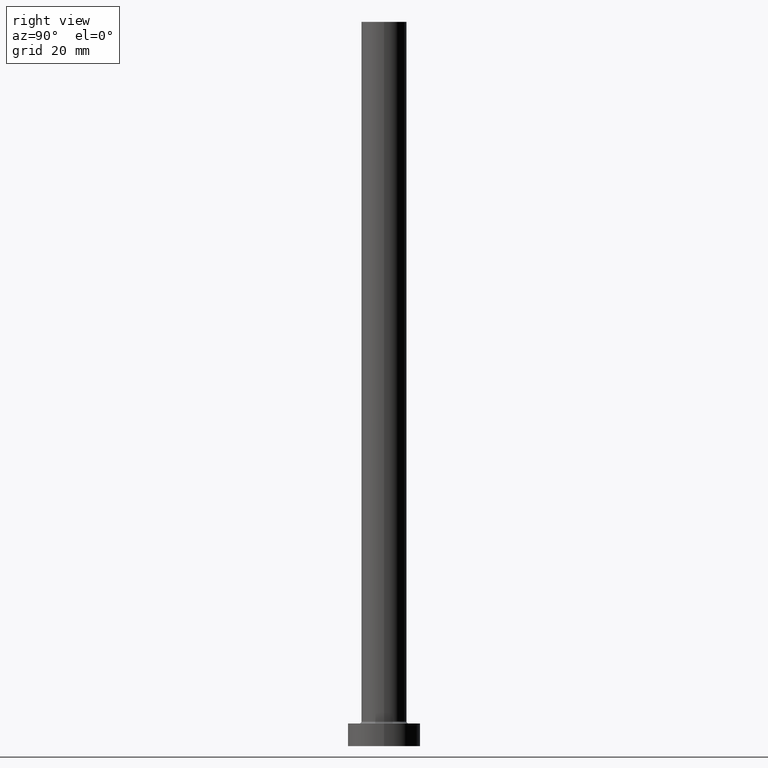
[diagram: clean part render]
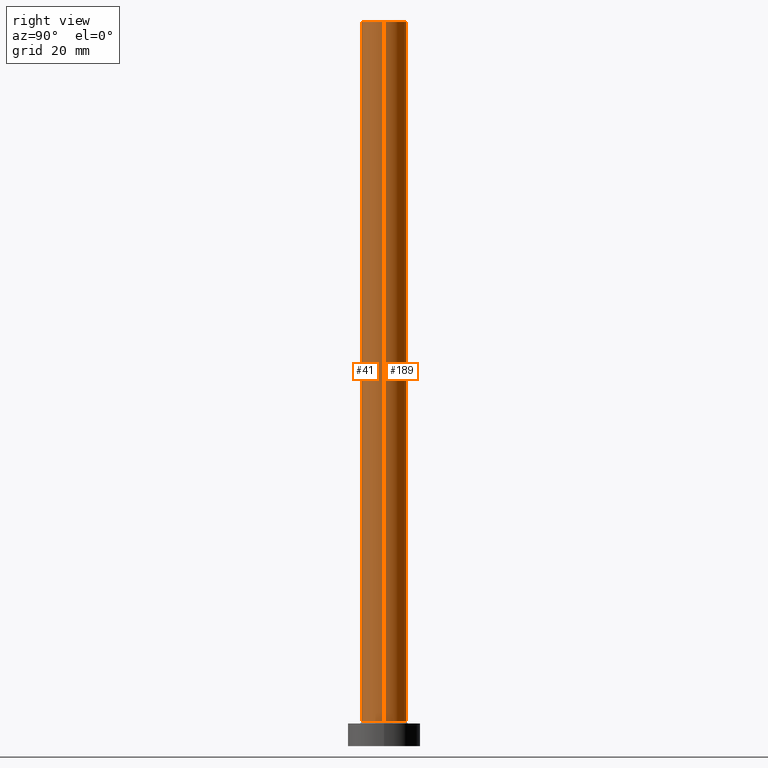
[diagram: same view with one multi-face feature highlighted, each face labeled with its STEP entity id]
A machine part, right view. The highlighted faces form ONE feature: a constant-radius fillet chain: 2 tangent blend faces with common blend radius 5 mm. The faces share edges in the B-rep.
Their STEP definitions:
[1] entity #41 (Cylinder):
#10 = DIRECTION ( 'NONE',  ( 1.000000000000000000, 0.000000000000000000, 0.000000000000000000 ) ) ;
#41 = ADVANCED_FACE ( 'NONE', ( #117 ), #362, .T. ) ;
#52 = CARTESIAN_POINT ( 'NONE',  ( 5.000000000000000000, 6.123233995736766282E-16, 160.0000000000000000 ) ) ;
#53 = EDGE_LOOP ( 'NONE', ( #223, #87, #453, #376 ) ) ;
#55 = DIRECTION ( 'NONE',  ( -1.000000000000000000, 0.000000000000000000, 0.000000000000000000 ) ) ;
#65 = VECTOR ( 'NONE', #221, 1000.000000000000000 ) ;
#78 = DIRECTION ( 'NONE',  ( 0.000000000000000000, 0.000000000000000000, 1.000000000000000000 ) ) ;
#81 = CARTESIAN_POINT ( 'NONE',  ( -5.000000000000000000, 0.000000000000000000, 160.0000000000000000 ) ) ;
#84 = DIRECTION ( 'NONE',  ( 0.000000000000000000, 0.000000000000000000, 1.000000000000000000 ) ) ;
#87 = ORIENTED_EDGE ( 'NONE', *, *, #277, .F. ) ;
#98 = CARTESIAN_POINT ( 'NONE',  ( 5.000000000000000000, 6.123233995736766282E-16, 5.500000000000005329 ) ) ;
#117 = FACE_OUTER_BOUND ( 'NONE', #53, .T. ) ;
#170 = VERTEX_POINT ( 'NONE', #98 ) ;
#175 = CARTESIAN_POINT ( 'NONE',  ( -5.000000000000000000, 0.000000000000000000, 5.500000000000005329 ) ) ;
#176 = VERTEX_POINT ( 'NONE', #269 ) ;
#205 = AXIS2_PLACEMENT_3D ( 'NONE', #416, #78, #211 ) ;
#211 = DIRECTION ( 'NONE',  ( 1.000000000000000000, 0.000000000000000000, 0.000000000000000000 ) ) ;
#216 = LINE ( 'NONE', #458, #393 ) ;
#221 = DIRECTION ( 'NONE',  ( -0.000000000000000000, -0.000000000000000000, -1.000000000000000000 ) ) ;
#223 = ORIENTED_EDGE ( 'NONE', *, *, #446, .F. ) ;
#269 = CARTESIAN_POINT ( 'NONE',  ( 5.000000000000000000, 6.123233995736766282E-16, 160.0000000000000000 ) ) ;
#275 = CARTESIAN_POINT ( 'NONE',  ( 0.000000000000000000, 0.000000000000000000, 5.500000000000005329 ) ) ;
#277 = EDGE_CURVE ( 'NONE', #288, #176, #349, .T. ) ;
#288 = VERTEX_POINT ( 'NONE', #81 ) ;
#289 = LINE ( 'NONE', #52, #65 ) ;
#313 = DIRECTION ( 'NONE',  ( -0.000000000000000000, -0.000000000000000000, -1.000000000000000000 ) ) ;
#331 = AXIS2_PLACEMENT_3D ( 'NONE', #367, #427, #55 ) ;
#349 = CIRCLE ( 'NONE', #205, 5.000000000000000000 ) ;
#362 = CYLINDRICAL_SURFACE ( 'NONE', #331, 5.000000000000000000 ) ;
#367 = CARTESIAN_POINT ( 'NONE',  ( 0.000000000000000000, 0.000000000000000000, 160.0000000000000000 ) ) ;
#369 = VERTEX_POINT ( 'NONE', #175 ) ;
#376 = ORIENTED_EDGE ( 'NONE', *, *, #423, .T. ) ;
#383 = EDGE_CURVE ( 'NONE', #288, #369, #216, .T. ) ;
#393 = VECTOR ( 'NONE', #313, 1000.000000000000000 ) ;
#415 = CIRCLE ( 'NONE', #461, 5.000000000000000000 ) ;
#416 = CARTESIAN_POINT ( 'NONE',  ( 0.000000000000000000, 0.000000000000000000, 160.0000000000000000 ) ) ;
#423 = EDGE_CURVE ( 'NONE', #369, #170, #415, .T. ) ;
#427 = DIRECTION ( 'NONE',  ( -0.000000000000000000, -0.000000000000000000, -1.000000000000000000 ) ) ;
#446 = EDGE_CURVE ( 'NONE', #176, #170, #289, .T. ) ;
#453 = ORIENTED_EDGE ( 'NONE', *, *, #383, .T. ) ;
#458 = CARTESIAN_POINT ( 'NONE',  ( -5.000000000000000000, 0.000000000000000000, 160.0000000000000000 ) ) ;
#461 = AXIS2_PLACEMENT_3D ( 'NONE', #275, #84, #10 ) ;
[2] entity #189 (Cylinder):
#9 = EDGE_CURVE ( 'NONE', #176, #288, #329, .T. ) ;
#21 = FACE_OUTER_BOUND ( 'NONE', #318, .T. ) ;
#23 = DIRECTION ( 'NONE',  ( 1.000000000000000000, 0.000000000000000000, 0.000000000000000000 ) ) ;
#24 = AXIS2_PLACEMENT_3D ( 'NONE', #68, #437, #23 ) ;
#52 = CARTESIAN_POINT ( 'NONE',  ( 5.000000000000000000, 6.123233995736766282E-16, 160.0000000000000000 ) ) ;
#65 = VECTOR ( 'NONE', #221, 1000.000000000000000 ) ;
#68 = CARTESIAN_POINT ( 'NONE',  ( 0.000000000000000000, 0.000000000000000000, 5.500000000000005329 ) ) ;
#81 = CARTESIAN_POINT ( 'NONE',  ( -5.000000000000000000, 0.000000000000000000, 160.0000000000000000 ) ) ;
#98 = CARTESIAN_POINT ( 'NONE',  ( 5.000000000000000000, 6.123233995736766282E-16, 5.500000000000005329 ) ) ;
#138 = CARTESIAN_POINT ( 'NONE',  ( 0.000000000000000000, 0.000000000000000000, 160.0000000000000000 ) ) ;
#151 = AXIS2_PLACEMENT_3D ( 'NONE', #138, #378, #174 ) ;
#154 = ORIENTED_EDGE ( 'NONE', *, *, #183, .T. ) ;
#166 = DIRECTION ( 'NONE',  ( -0.000000000000000000, -0.000000000000000000, -1.000000000000000000 ) ) ;
#170 = VERTEX_POINT ( 'NONE', #98 ) ;
#174 = DIRECTION ( 'NONE',  ( 1.000000000000000000, 0.000000000000000000, 0.000000000000000000 ) ) ;
#175 = CARTESIAN_POINT ( 'NONE',  ( -5.000000000000000000, 0.000000000000000000, 5.500000000000005329 ) ) ;
#176 = VERTEX_POINT ( 'NONE', #269 ) ;
#183 = EDGE_CURVE ( 'NONE', #170, #369, #220, .T. ) ;
#189 = ADVANCED_FACE ( 'NONE', ( #21 ), #266, .T. ) ;
#196 = ORIENTED_EDGE ( 'NONE', *, *, #9, .F. ) ;
#216 = LINE ( 'NONE', #458, #393 ) ;
#220 = CIRCLE ( 'NONE', #24, 5.000000000000000000 ) ;
#221 = DIRECTION ( 'NONE',  ( -0.000000000000000000, -0.000000000000000000, -1.000000000000000000 ) ) ;
#230 = DIRECTION ( 'NONE',  ( -1.000000000000000000, 0.000000000000000000, 0.000000000000000000 ) ) ;
#255 = AXIS2_PLACEMENT_3D ( 'NONE', #298, #166, #230 ) ;
#266 = CYLINDRICAL_SURFACE ( 'NONE', #255, 5.000000000000000000 ) ;
#269 = CARTESIAN_POINT ( 'NONE',  ( 5.000000000000000000, 6.123233995736766282E-16, 160.0000000000000000 ) ) ;
#288 = VERTEX_POINT ( 'NONE', #81 ) ;
#289 = LINE ( 'NONE', #52, #65 ) ;
#298 = CARTESIAN_POINT ( 'NONE',  ( 0.000000000000000000, 0.000000000000000000, 160.0000000000000000 ) ) ;
#313 = DIRECTION ( 'NONE',  ( -0.000000000000000000, -0.000000000000000000, -1.000000000000000000 ) ) ;
#318 = EDGE_LOOP ( 'NONE', ( #196, #330, #154, #449 ) ) ;
#329 = CIRCLE ( 'NONE', #151, 5.000000000000000000 ) ;
#330 = ORIENTED_EDGE ( 'NONE', *, *, #446, .T. ) ;
#369 = VERTEX_POINT ( 'NONE', #175 ) ;
#378 = DIRECTION ( 'NONE',  ( 0.000000000000000000, 0.000000000000000000, 1.000000000000000000 ) ) ;
#383 = EDGE_CURVE ( 'NONE', #288, #369, #216, .T. ) ;
#393 = VECTOR ( 'NONE', #313, 1000.000000000000000 ) ;
#437 = DIRECTION ( 'NONE',  ( 0.000000000000000000, 0.000000000000000000, 1.000000000000000000 ) ) ;
#446 = EDGE_CURVE ( 'NONE', #176, #170, #289, .T. ) ;
#449 = ORIENTED_EDGE ( 'NONE', *, *, #383, .F. ) ;
#458 = CARTESIAN_POINT ( 'NONE',  ( -5.000000000000000000, 0.000000000000000000, 160.0000000000000000 ) ) ;